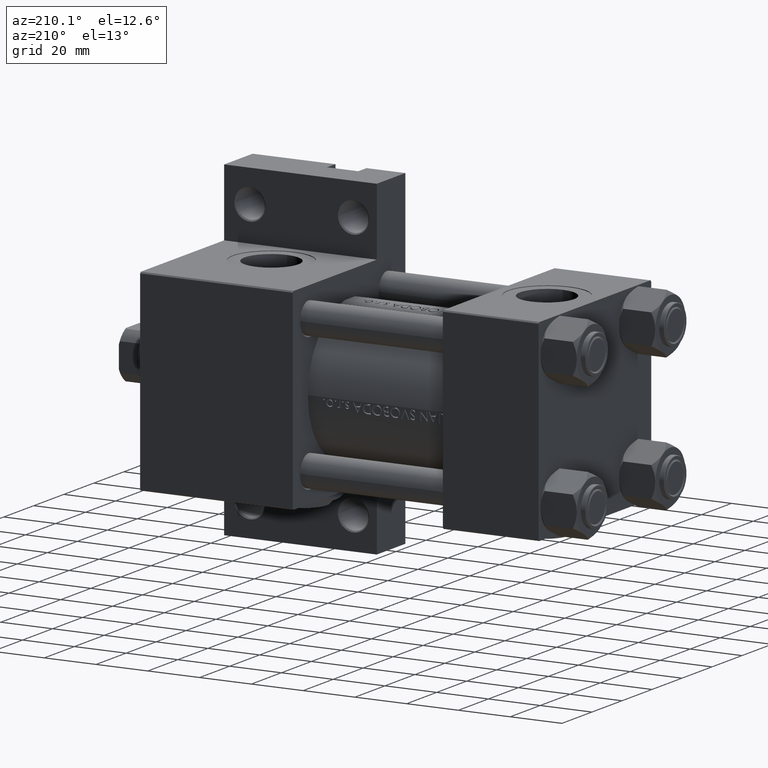
[diagram: clean part render]
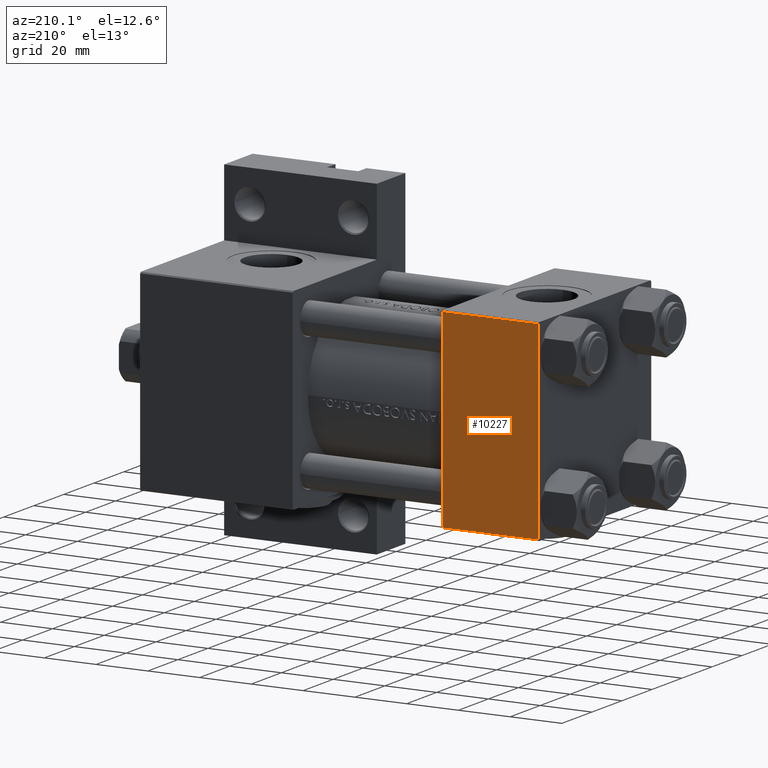
[diagram: same view with one face highlighted and labeled with its STEP entity id]
A machine part, auxiliary view. The second image highlights one B-rep face of the part: STEP entity #10227.
In plain terms, the highlighted planar face has unit normal (0, -1, -0).
Its self-contained STEP definition (entity closure, byte-faithful):
#217 = FACE_OUTER_BOUND ( 'NONE', #10993, .T. ) ;
#408 = CARTESIAN_POINT ( 'NONE',  ( 0.000000000000000000, 37.49999999999999289, 37.50000000000000000 ) ) ;
#1762 = DIRECTION ( 'NONE',  ( 0.000000000000000000, -1.000000000000000000, -9.251858538542971581E-17 ) ) ;
#3492 = PLANE ( 'NONE',  #22597 ) ;
#5071 = EDGE_CURVE ( 'NONE', #5260, #36581, #39208, .T. ) ;
#5260 = VERTEX_POINT ( 'NONE', #39407 ) ;
#8936 = DIRECTION ( 'NONE',  ( 0.000000000000000000, -1.000000000000000000, -9.251858538542971581E-17 ) ) ;
#10227 = ADVANCED_FACE ( 'NONE', ( #217 ), #3492, .F. ) ;
#10700 = VERTEX_POINT ( 'NONE', #42592 ) ;
#10993 = EDGE_LOOP ( 'NONE', ( #43438, #37414, #42902, #44028 ) ) ;
#11594 = EDGE_CURVE ( 'NONE', #10700, #47696, #42599, .T. ) ;
#17919 = CARTESIAN_POINT ( 'NONE',  ( 37.00000000000000000, -37.00000000000000711, 37.49999999999999289 ) ) ;
#22383 = CARTESIAN_POINT ( 'NONE',  ( 0.000000000000000000, -37.00000000000000711, 37.49999999999999289 ) ) ;
#22597 = AXIS2_PLACEMENT_3D ( 'NONE', #41919, #38154, #49699 ) ;
#23433 = LINE ( 'NONE', #27443, #37652 ) ;
#25125 = EDGE_CURVE ( 'NONE', #47696, #36581, #46813, .T. ) ;
#27443 = CARTESIAN_POINT ( 'NONE',  ( 0.000000000000000000, 36.99999999999999289, 37.50000000000000000 ) ) ;
#29875 = VECTOR ( 'NONE', #8936, 1000.000000000000000 ) ;
#31756 = CARTESIAN_POINT ( 'NONE',  ( 37.00000000000000000, -37.00000000000000711, 37.49999999999999289 ) ) ;
#34014 = VECTOR ( 'NONE', #1762, 1000.000000000000000 ) ;
#34978 = DIRECTION ( 'NONE',  ( -1.000000000000000000, 0.000000000000000000, 0.000000000000000000 ) ) ;
#35344 = EDGE_CURVE ( 'NONE', #5260, #10700, #23433, .T. ) ;
#36581 = VERTEX_POINT ( 'NONE', #17919 ) ;
#37414 = ORIENTED_EDGE ( 'NONE', *, *, #25125, .T. ) ;
#37652 = VECTOR ( 'NONE', #34978, 1000.000000000000000 ) ;
#38154 = DIRECTION ( 'NONE',  ( 0.000000000000000000, 9.251858538542971581E-17, -1.000000000000000000 ) ) ;
#38969 = CARTESIAN_POINT ( 'NONE',  ( 37.00000000000000000, 37.49999999999999289, 37.50000000000000000 ) ) ;
#39208 = LINE ( 'NONE', #38969, #34014 ) ;
#39407 = CARTESIAN_POINT ( 'NONE',  ( 37.00000000000000000, 36.99999999999999289, 37.50000000000000000 ) ) ;
#40221 = VECTOR ( 'NONE', #47050, 1000.000000000000000 ) ;
#41919 = CARTESIAN_POINT ( 'NONE',  ( 37.00000000000000000, 37.49999999999999289, 37.50000000000000000 ) ) ;
#42592 = CARTESIAN_POINT ( 'NONE',  ( 0.000000000000000000, 36.99999999999999289, 37.50000000000000000 ) ) ;
#42599 = LINE ( 'NONE', #408, #29875 ) ;
#42902 = ORIENTED_EDGE ( 'NONE', *, *, #5071, .F. ) ;
#43438 = ORIENTED_EDGE ( 'NONE', *, *, #11594, .T. ) ;
#44028 = ORIENTED_EDGE ( 'NONE', *, *, #35344, .T. ) ;
#46813 = LINE ( 'NONE', #31756, #40221 ) ;
#47050 = DIRECTION ( 'NONE',  ( 1.000000000000000000, 0.000000000000000000, 0.000000000000000000 ) ) ;
#47696 = VERTEX_POINT ( 'NONE', #22383 ) ;
#49699 = DIRECTION ( 'NONE',  ( 0.000000000000000000, 1.000000000000000000, 9.251858538542971581E-17 ) ) ;